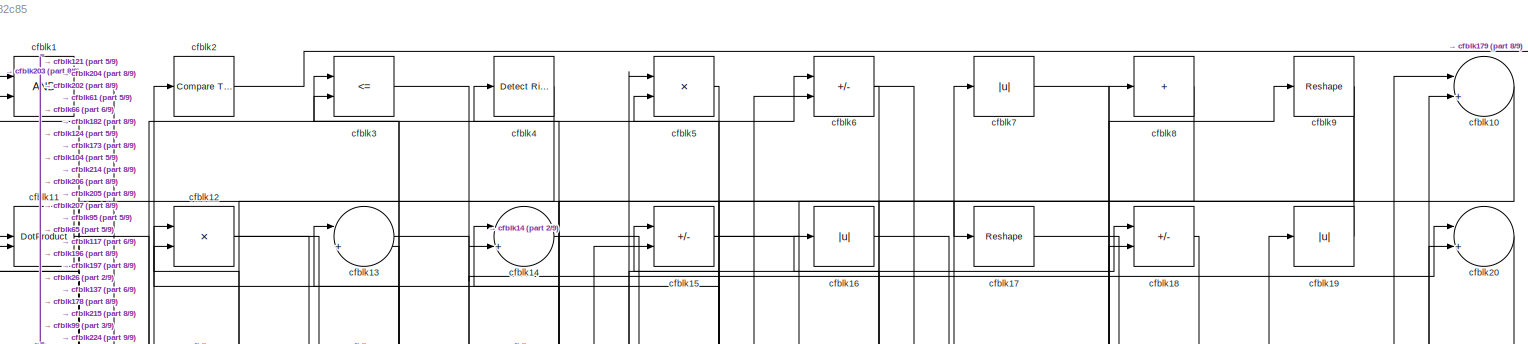
[diagram: root canvas - part 1/9, full width, top band]
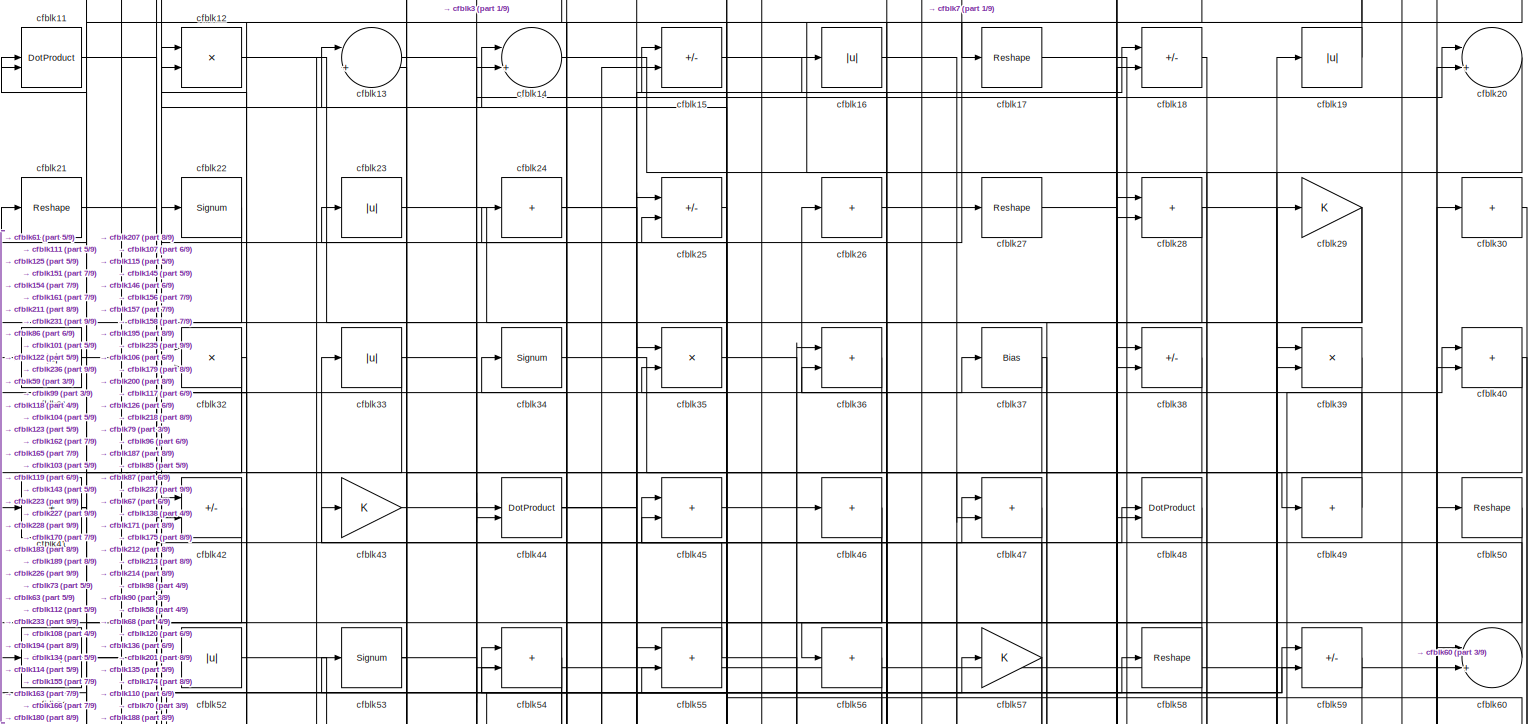
[diagram: root canvas - part 2/9, full width, top band]
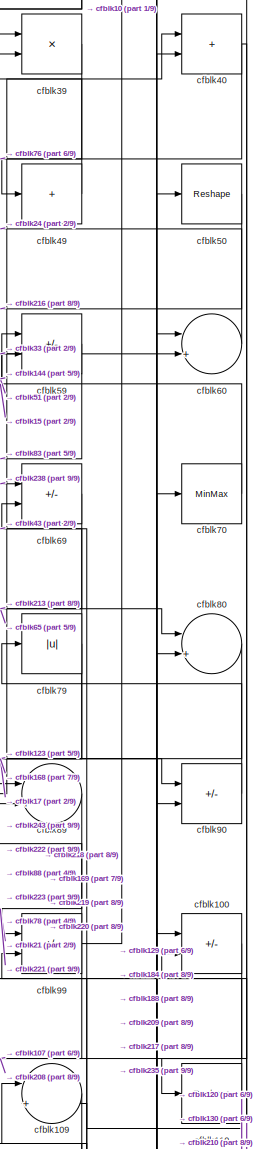
[diagram: root canvas - part 3/9, top right region]
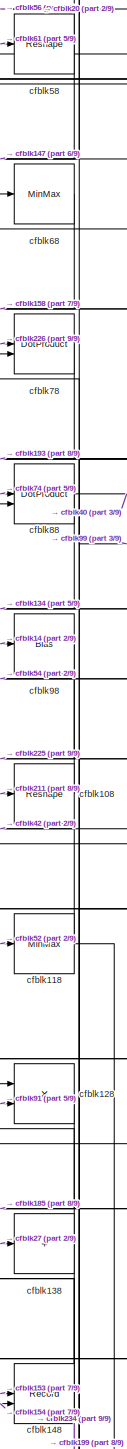
[diagram: root canvas - part 4/9, middle right region]
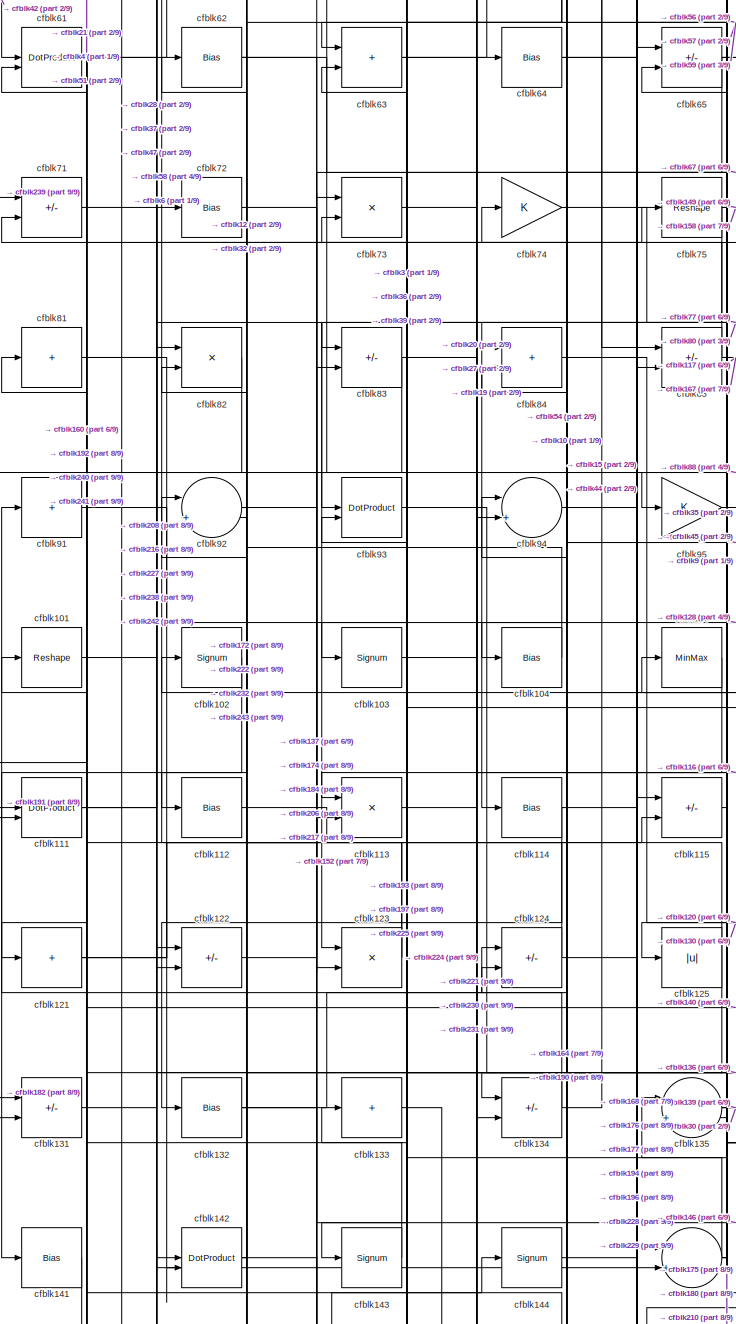
[diagram: root canvas - part 5/9, middle left region]
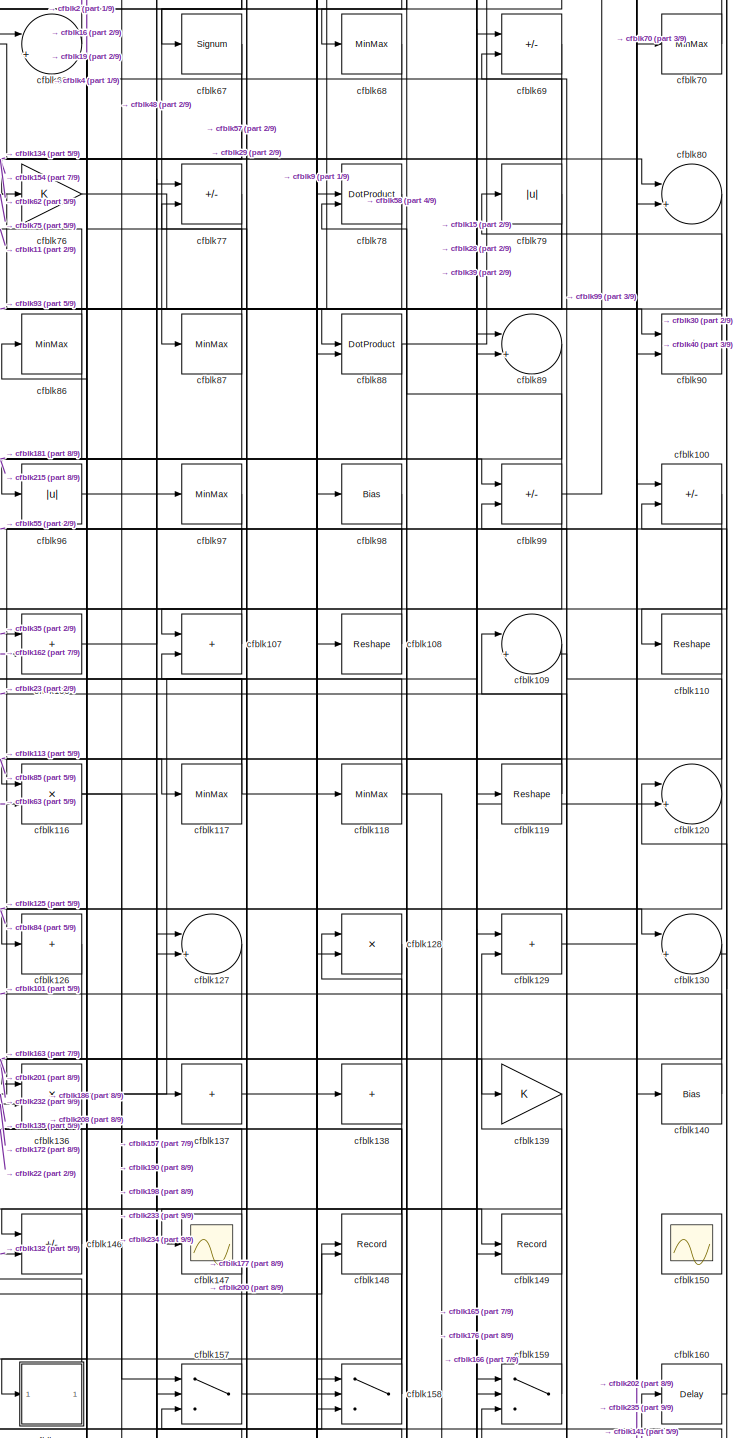
[diagram: root canvas - part 6/9, middle right region]
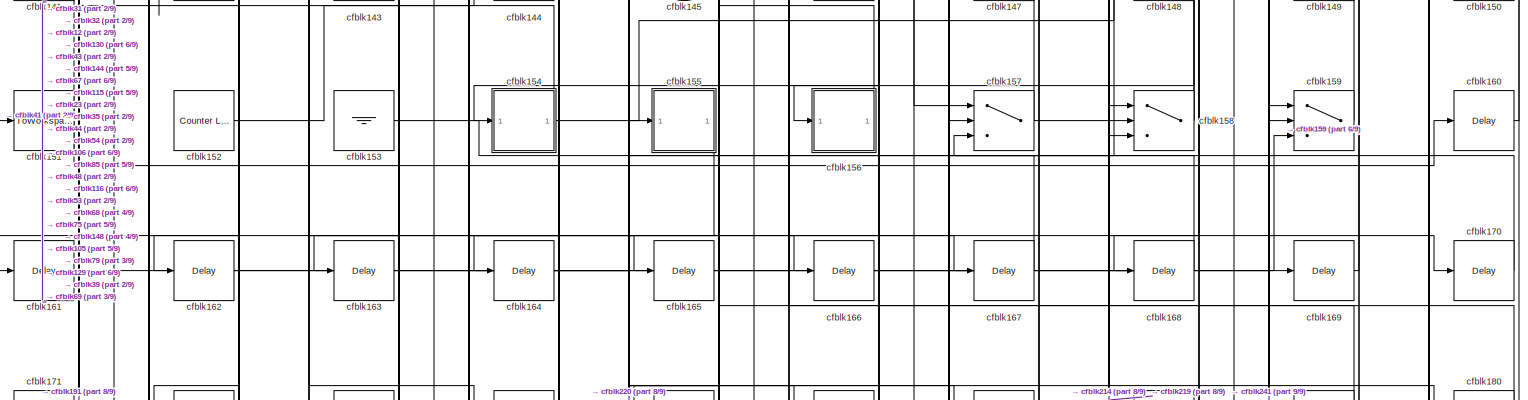
[diagram: root canvas - part 7/9, full width, middle band]
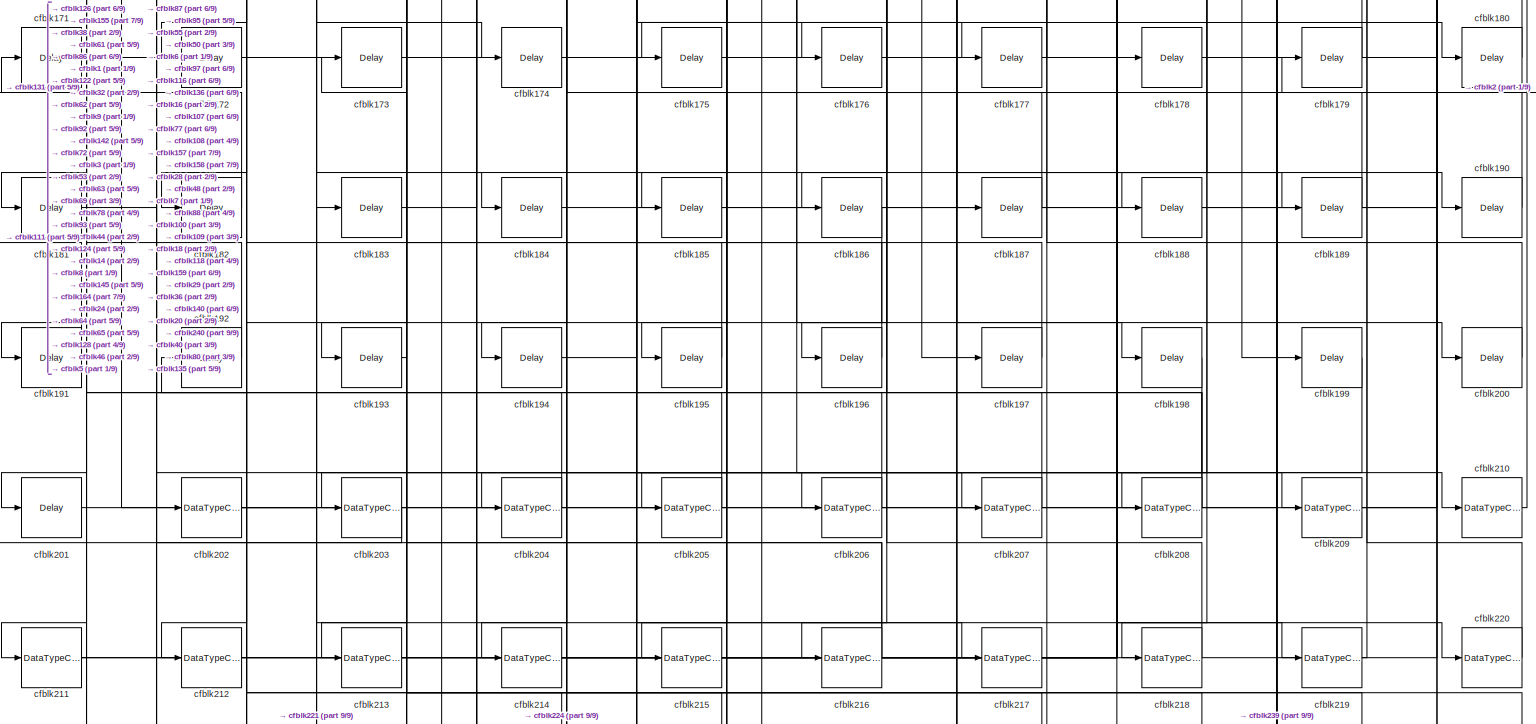
[diagram: root canvas - part 8/9, full width, bottom band]
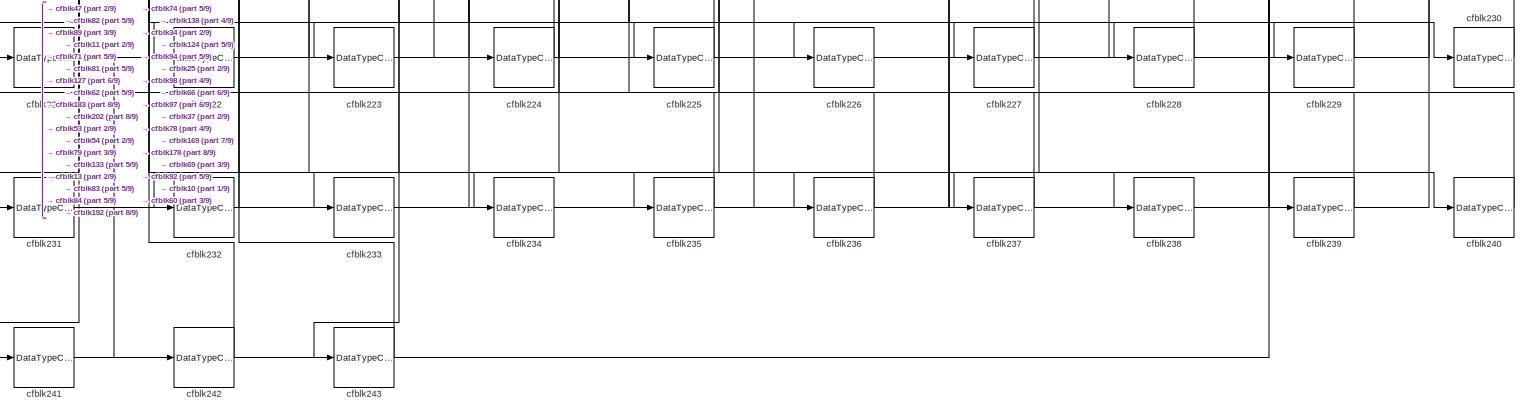
[diagram: root canvas - part 9/9, full width, bottom band]
MODEL slx_c35cb0b82c85
KIND model
CONFIG AbsTol = auto
CONFIG EnableMultiTasking = off
CONFIG FixedStep = auto
CONFIG MaxStep = auto
CONFIG MinStep = auto
CONFIG RelTol = 1e-3
CONFIG SampleTimeConstraint = Unconstrained
CONFIG SolverName = VariableStepAuto
CONFIG StartTime = 0.0
CONFIG StopTime = 10.0
BLOCK [Logic] cfblk1
  AllPortsSameDT = off
  OutDataTypeStr = boolean
BLOCK [Sum] cfblk10
  Inputs = |++
BLOCK [Sum] cfblk100
  IconShape = rectangular
  Inputs = +-
BLOCK [Reshape] cfblk101
BLOCK [Signum] cfblk102
BLOCK [Signum] cfblk103
BLOCK [Bias] cfblk104
  Bias = 0.0
  SaturateOnIntegerOverflow = off
BLOCK [MinMax] cfblk105
BLOCK [Sum] cfblk106
  IconShape = rectangular
BLOCK [Sum] cfblk107
  IconShape = rectangular
BLOCK [Reshape] cfblk108
BLOCK [Sum] cfblk109
  Inputs = |++
BLOCK [DotProduct] cfblk11
  OutDataTypeStr = Inherit: Inherit via internal rule
BLOCK [Reshape] cfblk110
BLOCK [DotProduct] cfblk111
  OutDataTypeStr = Inherit: Inherit via internal rule
BLOCK [Bias] cfblk112
  Bias = 0.0
  SaturateOnIntegerOverflow = off
BLOCK [Product] cfblk113
  Inputs = */
  RndMeth = Zero
  SaturateOnIntegerOverflow = on
BLOCK [Bias] cfblk114
  Bias = 0.0
  SaturateOnIntegerOverflow = off
BLOCK [Sum] cfblk115
  IconShape = rectangular
  Inputs = +-
BLOCK [Product] cfblk116
  Inputs = */
  RndMeth = Zero
  SaturateOnIntegerOverflow = on
BLOCK [MinMax] cfblk117
BLOCK [MinMax] cfblk118
BLOCK [Reshape] cfblk119
BLOCK [Product] cfblk12
  Inputs = */
  RndMeth = Zero
  SaturateOnIntegerOverflow = on
BLOCK [Sum] cfblk120
  Inputs = |++
BLOCK [Sum] cfblk121
  IconShape = rectangular
  Inputs = +
BLOCK [Sum] cfblk122
  IconShape = rectangular
  Inputs = +-
BLOCK [Product] cfblk123
  Inputs = */
  RndMeth = Zero
  SaturateOnIntegerOverflow = on
BLOCK [Sum] cfblk124
  IconShape = rectangular
  Inputs = +-
BLOCK [Abs] cfblk125
  SaturateOnIntegerOverflow = off
BLOCK [Sum] cfblk126
  IconShape = rectangular
  Inputs = +
BLOCK [Sum] cfblk127
  Inputs = |++
BLOCK [Product] cfblk128
  Inputs = */
  RndMeth = Zero
  SaturateOnIntegerOverflow = on
BLOCK [Sum] cfblk129
  IconShape = rectangular
BLOCK [Sum] cfblk13
  Inputs = |++
BLOCK [Sum] cfblk130
  Inputs = |++
BLOCK [Sum] cfblk131
  IconShape = rectangular
  Inputs = +-
BLOCK [Bias] cfblk132
  Bias = 0.0
  SaturateOnIntegerOverflow = off
BLOCK [Sum] cfblk133
  IconShape = rectangular
  Inputs = +
BLOCK [Sum] cfblk134
  IconShape = rectangular
  Inputs = +-
BLOCK [Sum] cfblk135
  Inputs = |++
BLOCK [Product] cfblk136
  Inputs = */
  RndMeth = Zero
  SaturateOnIntegerOverflow = on
BLOCK [Sum] cfblk137
  IconShape = rectangular
  Inputs = +
BLOCK [Sum] cfblk138
  IconShape = rectangular
  Inputs = +
BLOCK [Gain] cfblk139
BLOCK [Sum] cfblk14
  Inputs = |++
BLOCK [Bias] cfblk140
  Bias = 0.0
  SaturateOnIntegerOverflow = off
BLOCK [Bias] cfblk141
  Bias = 0.0
  SaturateOnIntegerOverflow = off
BLOCK [DotProduct] cfblk142
  OutDataTypeStr = Inherit: Inherit via internal rule
BLOCK [Signum] cfblk143
BLOCK [Signum] cfblk144
BLOCK [Sum] cfblk145
  Inputs = |++
BLOCK [Sum] cfblk146
  IconShape = rectangular
  Inputs = +-
BLOCK [Scope] cfblk147
  Floating = off
  NumInputPorts = 1
  ScopeSpecificationString = Simulink.scopes.TimeScopeBlockCfg('CurrentConfiguration', extmgr.ConfigurationSet(extmgr.Configuration('Core','General UI',true),extmgr.Configuration('Core','Source UI',true),extmgr.Configuration('Sources','WiredSimulink',true,'DataLoggingVariableName','ScopeData2','DataLoggingSaveFormat','Array','DataLoggingLimitDataPoints',true,'DataLoggingDecimation','1'),extmgr.Configuration('Visuals','Time Do...<+868ch>
BLOCK [Record] cfblk148
  CompatibilityTag = XY
  FileSettingsInternal = {"entries":[{"content":{"excelSettings":{"content":{},"type":"Streamout.ExcelSettings"}},"type":"Streamout.FileSettingStorage","uuid":""}],"packageUris":["http:\/\/schema.mathworks.com\/mf0\/streamout_blocks\/R2020a"],"version":"1.0"}
  Layout = [1 1]
  SignalsInternal = {"entries":[{"content":{"signals":[{"content":{"blockPath":[],"dimensions":[1],"domain":"","lineColor":"#a2142f","plots":[1],"port":1,"signalID":5311,"signalName":"XY Graph:1"},"type":"RecordBlkView.Signal","uuid":""},{"content":{"blockPath":[],"dimensions":[1],"domain":"","lineColor":"#139fff","plots":[1],"port":2,"signalID":5314,"signalName":"XY Graph:2"},"type":"RecordBlkView.Signal","uuid":""}...<+146ch>
  VisualizationBindings = {"xyplotplugin":{"info":[{"series":[{"bindingParametersList":[{"parameter":"X-Axis","signalID":5311,"signalName":"XY Graph:1"},{"parameter":"Y-Axis","signalID":5314,"signalName":"XY Graph:2"}],"seriesID":33209}],"subplotID":1}]}}
  st = -1
BLOCK [Record] cfblk149
  CompatibilityTag = XY
  FileSettingsInternal = {"entries":[{"content":{"excelSettings":{"content":{},"type":"Streamout.ExcelSettings"}},"type":"Streamout.FileSettingStorage","uuid":""}],"packageUris":["http:\/\/schema.mathworks.com\/mf0\/streamout_blocks\/R2020a"],"version":"1.0"}
  Layout = [1 1]
  SignalsInternal = {"entries":[{"content":{"signals":[{"content":{"blockPath":[],"dimensions":[1],"domain":"","lineColor":"#a2142f","plots":[1],"port":1,"signalID":5319,"signalName":"XY Graph:1"},"type":"RecordBlkView.Signal","uuid":""},{"content":{"blockPath":[],"dimensions":[1],"domain":"","lineColor":"#139fff","plots":[1],"port":2,"signalID":5322,"signalName":"XY Graph:2"},"type":"RecordBlkView.Signal","uuid":""}...<+146ch>
  VisualizationBindings = {"xyplotplugin":{"info":[{"series":[{"bindingParametersList":[{"parameter":"X-Axis","signalID":5319,"signalName":"XY Graph:1"},{"parameter":"Y-Axis","signalID":5322,"signalName":"XY Graph:2"}],"seriesID":898}],"subplotID":1}]}}
  st = -1
BLOCK [Sum] cfblk15
  IconShape = rectangular
  Inputs = +-
BLOCK [Scope] cfblk150
  Floating = on
  NumInputPorts = 1
  ScopeSpecificationString = Simulink.scopes.TimeScopeBlockCfg('CurrentConfiguration', extmgr.ConfigurationSet(extmgr.Configuration('Core','General UI',true,'FigureColor',[0.156862745098039 0.156862745098039 0.156862745098039]),extmgr.Configuration('Core','Source UI',true),extmgr.Configuration('Sources','WiredSimulink',true,'DataLoggingVariableName','ScopeData1','DataLoggingSaveFormat','StructureWithTime','DataLoggingLimitDat...<+2713ch>
BLOCK [ToWorkspace] cfblk151
  MaxDataPoints = inf
  SampleTime = -1
  SaveFormat = Timeseries
  VariableName = simout
BLOCK [Reference] cfblk152  REF=hdlsllib/Sources/Counter
Limited
  SourceBlock = hdlsllib/Sources/Counter\nLimited
  SourceType = Counter Limited
BLOCK [Ground] cfblk153
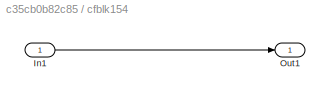
BLOCK [SubSystem] cfblk154
  LibrarySourceBlock = hdlsllib/Ports &\nSubsystems/Subsystem
BLOCK [Inport] cfblk154/In1
BLOCK [Outport] cfblk154/Out1
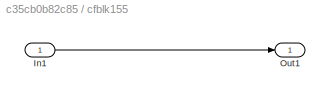
BLOCK [SubSystem] cfblk155
  LibrarySourceBlock = hdlsllib/Ports &\nSubsystems/Subsystem
BLOCK [Inport] cfblk155/In1
BLOCK [Outport] cfblk155/Out1
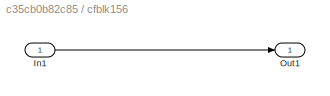
BLOCK [SubSystem] cfblk156
  LibrarySourceBlock = hdlsllib/Ports &\nSubsystems/Subsystem
BLOCK [Inport] cfblk156/In1
BLOCK [Outport] cfblk156/Out1
BLOCK [Switch] cfblk157
  InputSameDT = off
  SaturateOnIntegerOverflow = off
BLOCK [Switch] cfblk158
  InputSameDT = off
  SaturateOnIntegerOverflow = off
BLOCK [Switch] cfblk159
  InputSameDT = off
  SaturateOnIntegerOverflow = off
BLOCK [Abs] cfblk16
  SaturateOnIntegerOverflow = off
BLOCK [Delay] cfblk160
  InputPortMap = u0
  SampleTime = 1
BLOCK [Delay] cfblk161
  InputPortMap = u0
  SampleTime = 1
BLOCK [Delay] cfblk162
  InputPortMap = u0
  SampleTime = 1
BLOCK [Delay] cfblk163
  InputPortMap = u0
  SampleTime = 1
BLOCK [Delay] cfblk164
  InputPortMap = u0
  SampleTime = 1
BLOCK [Delay] cfblk165
  InputPortMap = u0
  SampleTime = 1
BLOCK [Delay] cfblk166
  InputPortMap = u0
  SampleTime = 1
BLOCK [Delay] cfblk167
  InputPortMap = u0
  SampleTime = 1
BLOCK [Delay] cfblk168
  InputPortMap = u0
  SampleTime = 1
BLOCK [Delay] cfblk169
  InputPortMap = u0
  SampleTime = 1
BLOCK [Reshape] cfblk17
BLOCK [Delay] cfblk170
  InputPortMap = u0
  SampleTime = 1
BLOCK [Delay] cfblk171
  InputPortMap = u0
  SampleTime = 1
BLOCK [Delay] cfblk172
  InputPortMap = u0
  SampleTime = 1
BLOCK [Delay] cfblk173
  InputPortMap = u0
  SampleTime = 1
BLOCK [Delay] cfblk174
  InputPortMap = u0
  SampleTime = 1
BLOCK [Delay] cfblk175
  InputPortMap = u0
  SampleTime = 1
BLOCK [Delay] cfblk176
  InputPortMap = u0
  SampleTime = 1
BLOCK [Delay] cfblk177
  InputPortMap = u0
  SampleTime = 1
BLOCK [Delay] cfblk178
  InputPortMap = u0
  SampleTime = 1
BLOCK [Delay] cfblk179
  InputPortMap = u0
  SampleTime = 1
BLOCK [Sum] cfblk18
  IconShape = rectangular
  Inputs = +-
BLOCK [Delay] cfblk180
  InputPortMap = u0
  SampleTime = 1
BLOCK [Delay] cfblk181
  InputPortMap = u0
  SampleTime = 1
BLOCK [Delay] cfblk182
  InputPortMap = u0
  SampleTime = 1
BLOCK [Delay] cfblk183
  InputPortMap = u0
  SampleTime = 1
BLOCK [Delay] cfblk184
  InputPortMap = u0
  SampleTime = 1
BLOCK [Delay] cfblk185
  InputPortMap = u0
  SampleTime = 1
BLOCK [Delay] cfblk186
  InputPortMap = u0
  SampleTime = 1
BLOCK [Delay] cfblk187
  InputPortMap = u0
  SampleTime = 1
BLOCK [Delay] cfblk188
  InputPortMap = u0
  SampleTime = 1
BLOCK [Delay] cfblk189
  InputPortMap = u0
  SampleTime = 1
BLOCK [Abs] cfblk19
  SaturateOnIntegerOverflow = off
BLOCK [Delay] cfblk190
  InputPortMap = u0
  SampleTime = 1
BLOCK [Delay] cfblk191
  InputPortMap = u0
  SampleTime = 1
BLOCK [Delay] cfblk192
  InputPortMap = u0
  SampleTime = 1
BLOCK [Delay] cfblk193
  InputPortMap = u0
  SampleTime = 1
BLOCK [Delay] cfblk194
  InputPortMap = u0
  SampleTime = 1
BLOCK [Delay] cfblk195
  InputPortMap = u0
  SampleTime = 1
BLOCK [Delay] cfblk196
  InputPortMap = u0
  SampleTime = 1
BLOCK [Delay] cfblk197
  InputPortMap = u0
  SampleTime = 1
BLOCK [Delay] cfblk198
  InputPortMap = u0
  SampleTime = 1
BLOCK [Delay] cfblk199
  InputPortMap = u0
  SampleTime = 1
BLOCK [Reference] cfblk2  REF=hdlsllib/Logic and Bit
Operations/Compare
To Zero
  SourceBlock = hdlsllib/Logic and Bit\nOperations/Compare\nTo Zero
  SourceType = Compare To Zero
BLOCK [Sum] cfblk20
  Inputs = |++
BLOCK [Delay] cfblk200
  InputPortMap = u0
  SampleTime = 1
BLOCK [Delay] cfblk201
  InputPortMap = u0
  SampleTime = 1
BLOCK [DataTypeConversion] cfblk202
  RndMeth = Floor
  SaturateOnIntegerOverflow = off
BLOCK [DataTypeConversion] cfblk203
  OutDataTypeStr = uint8
  RndMeth = Floor
  SaturateOnIntegerOverflow = off
BLOCK [DataTypeConversion] cfblk204
  OutDataTypeStr = uint8
  RndMeth = Floor
  SaturateOnIntegerOverflow = off
BLOCK [DataTypeConversion] cfblk205
  OutDataTypeStr = uint8
  RndMeth = Floor
  SaturateOnIntegerOverflow = off
BLOCK [DataTypeConversion] cfblk206
  OutDataTypeStr = uint8
  RndMeth = Floor
  SaturateOnIntegerOverflow = off
BLOCK [DataTypeConversion] cfblk207
  OutDataTypeStr = uint8
  RndMeth = Floor
  SaturateOnIntegerOverflow = off
BLOCK [DataTypeConversion] cfblk208
  RndMeth = Floor
  SaturateOnIntegerOverflow = off
BLOCK [DataTypeConversion] cfblk209
  OutDataTypeStr = uint8
  RndMeth = Floor
  SaturateOnIntegerOverflow = off
BLOCK [Reshape] cfblk21
BLOCK [DataTypeConversion] cfblk210
  OutDataTypeStr = uint8
  RndMeth = Floor
  SaturateOnIntegerOverflow = off
BLOCK [DataTypeConversion] cfblk211
  RndMeth = Floor
  SaturateOnIntegerOverflow = off
BLOCK [DataTypeConversion] cfblk212
  OutDataTypeStr = uint8
  RndMeth = Floor
  SaturateOnIntegerOverflow = off
BLOCK [DataTypeConversion] cfblk213
  OutDataTypeStr = uint8
  RndMeth = Floor
  SaturateOnIntegerOverflow = off
BLOCK [DataTypeConversion] cfblk214
  RndMeth = Floor
  SaturateOnIntegerOverflow = off
BLOCK [DataTypeConversion] cfblk215
  OutDataTypeStr = uint8
  RndMeth = Floor
  SaturateOnIntegerOverflow = off
BLOCK [DataTypeConversion] cfblk216
  RndMeth = Floor
  SaturateOnIntegerOverflow = off
BLOCK [DataTypeConversion] cfblk217
  OutDataTypeStr = uint8
  RndMeth = Floor
  SaturateOnIntegerOverflow = off
BLOCK [DataTypeConversion] cfblk218
  OutDataTypeStr = uint8
  RndMeth = Floor
  SaturateOnIntegerOverflow = off
BLOCK [DataTypeConversion] cfblk219
  OutDataTypeStr = uint8
  RndMeth = Floor
  SaturateOnIntegerOverflow = off
BLOCK [Signum] cfblk22
BLOCK [DataTypeConversion] cfblk220
  OutDataTypeStr = uint8
  RndMeth = Floor
  SaturateOnIntegerOverflow = off
BLOCK [DataTypeConversion] cfblk221
  RndMeth = Floor
  SaturateOnIntegerOverflow = off
BLOCK [DataTypeConversion] cfblk222
  OutDataTypeStr = uint8
  RndMeth = Floor
  SaturateOnIntegerOverflow = off
BLOCK [DataTypeConversion] cfblk223
  OutDataTypeStr = uint8
  RndMeth = Floor
  SaturateOnIntegerOverflow = off
BLOCK [DataTypeConversion] cfblk224
  RndMeth = Floor
  SaturateOnIntegerOverflow = off
BLOCK [DataTypeConversion] cfblk225
  OutDataTypeStr = uint8
  RndMeth = Floor
  SaturateOnIntegerOverflow = off
BLOCK [DataTypeConversion] cfblk226
  OutDataTypeStr = uint8
  RndMeth = Floor
  SaturateOnIntegerOverflow = off
BLOCK [DataTypeConversion] cfblk227
  OutDataTypeStr = uint8
  RndMeth = Floor
  SaturateOnIntegerOverflow = off
BLOCK [DataTypeConversion] cfblk228
  OutDataTypeStr = uint8
  RndMeth = Floor
  SaturateOnIntegerOverflow = off
BLOCK [DataTypeConversion] cfblk229
  OutDataTypeStr = uint8
  RndMeth = Floor
  SaturateOnIntegerOverflow = off
BLOCK [Abs] cfblk23
  SaturateOnIntegerOverflow = off
BLOCK [DataTypeConversion] cfblk230
  OutDataTypeStr = uint8
  RndMeth = Floor
  SaturateOnIntegerOverflow = off
BLOCK [DataTypeConversion] cfblk231
  OutDataTypeStr = uint8
  RndMeth = Floor
  SaturateOnIntegerOverflow = off
BLOCK [DataTypeConversion] cfblk232
  RndMeth = Floor
  SaturateOnIntegerOverflow = off
BLOCK [DataTypeConversion] cfblk233
  OutDataTypeStr = uint8
  RndMeth = Floor
  SaturateOnIntegerOverflow = off
BLOCK [DataTypeConversion] cfblk234
  OutDataTypeStr = uint8
  RndMeth = Floor
  SaturateOnIntegerOverflow = off
BLOCK [DataTypeConversion] cfblk235
  RndMeth = Floor
  SaturateOnIntegerOverflow = off
BLOCK [DataTypeConversion] cfblk236
  OutDataTypeStr = uint8
  RndMeth = Floor
  SaturateOnIntegerOverflow = off
BLOCK [DataTypeConversion] cfblk237
  OutDataTypeStr = uint8
  RndMeth = Floor
  SaturateOnIntegerOverflow = off
BLOCK [DataTypeConversion] cfblk238
  OutDataTypeStr = uint8
  RndMeth = Floor
  SaturateOnIntegerOverflow = off
BLOCK [DataTypeConversion] cfblk239
  OutDataTypeStr = uint8
  RndMeth = Floor
  SaturateOnIntegerOverflow = off
BLOCK [Sum] cfblk24
  IconShape = rectangular
  Inputs = +
BLOCK [DataTypeConversion] cfblk240
  OutDataTypeStr = uint8
  RndMeth = Floor
  SaturateOnIntegerOverflow = off
BLOCK [DataTypeConversion] cfblk241
  OutDataTypeStr = uint8
  RndMeth = Floor
  SaturateOnIntegerOverflow = off
BLOCK [DataTypeConversion] cfblk242
  OutDataTypeStr = uint8
  RndMeth = Floor
  SaturateOnIntegerOverflow = off
BLOCK [DataTypeConversion] cfblk243
  OutDataTypeStr = uint8
  RndMeth = Floor
  SaturateOnIntegerOverflow = off
BLOCK [Sum] cfblk25
  IconShape = rectangular
  Inputs = +-
BLOCK [Sum] cfblk26
  IconShape = rectangular
  Inputs = +
BLOCK [Reshape] cfblk27
BLOCK [Sum] cfblk28
  IconShape = rectangular
BLOCK [Gain] cfblk29
BLOCK [RelationalOperator] cfblk3
  InputSameDT = off
  Operator = <=
  OutDataTypeStr = boolean
BLOCK [Sum] cfblk30
  IconShape = rectangular
  Inputs = +
BLOCK [Abs] cfblk31
  SaturateOnIntegerOverflow = off
BLOCK [Product] cfblk32
  Inputs = */
  RndMeth = Zero
  SaturateOnIntegerOverflow = on
BLOCK [Abs] cfblk33
  SaturateOnIntegerOverflow = off
BLOCK [Signum] cfblk34
BLOCK [Product] cfblk35
  Inputs = */
  RndMeth = Zero
  SaturateOnIntegerOverflow = on
BLOCK [Sum] cfblk36
  IconShape = rectangular
BLOCK [Bias] cfblk37
  Bias = 0.0
  SaturateOnIntegerOverflow = off
BLOCK [Sum] cfblk38
  IconShape = rectangular
  Inputs = +-
BLOCK [Product] cfblk39
  Inputs = */
  RndMeth = Zero
  SaturateOnIntegerOverflow = on
BLOCK [Reference] cfblk4  REF=hdlsllib/Logic and Bit
Operations/Detect Rise
Nonnegative
  SourceBlock = hdlsllib/Logic and Bit\nOperations/Detect Rise\nNonnegative
  SourceType = Detect Rise Nonnegative
BLOCK [Sum] cfblk40
  IconShape = rectangular
BLOCK [Sum] cfblk41
  IconShape = rectangular
  Inputs = +
BLOCK [Sum] cfblk42
  IconShape = rectangular
  Inputs = +-
BLOCK [Gain] cfblk43
BLOCK [DotProduct] cfblk44
  OutDataTypeStr = Inherit: Inherit via internal rule
BLOCK [Sum] cfblk45
  IconShape = rectangular
BLOCK [Sum] cfblk46
  IconShape = rectangular
  Inputs = +
BLOCK [Sum] cfblk47
  IconShape = rectangular
BLOCK [DotProduct] cfblk48
  OutDataTypeStr = Inherit: Inherit via internal rule
BLOCK [Sum] cfblk49
  IconShape = rectangular
  Inputs = +
BLOCK [Product] cfblk5
  Inputs = */
  RndMeth = Zero
  SaturateOnIntegerOverflow = on
BLOCK [Reshape] cfblk50
BLOCK [Reshape] cfblk51
BLOCK [Abs] cfblk52
  SaturateOnIntegerOverflow = off
BLOCK [Signum] cfblk53
BLOCK [Sum] cfblk54
  IconShape = rectangular
BLOCK [Sum] cfblk55
  IconShape = rectangular
BLOCK [Sum] cfblk56
  IconShape = rectangular
  Inputs = +
BLOCK [Gain] cfblk57
BLOCK [Reshape] cfblk58
BLOCK [Sum] cfblk59
  IconShape = rectangular
  Inputs = +-
BLOCK [Sum] cfblk6
  IconShape = rectangular
  Inputs = +-
BLOCK [Sum] cfblk60
  Inputs = |++
BLOCK [DotProduct] cfblk61
  OutDataTypeStr = Inherit: Inherit via internal rule
BLOCK [Bias] cfblk62
  Bias = 0.0
  SaturateOnIntegerOverflow = off
BLOCK [Sum] cfblk63
  IconShape = rectangular
BLOCK [Bias] cfblk64
  Bias = 0.0
  SaturateOnIntegerOverflow = off
BLOCK [Sum] cfblk65
  IconShape = rectangular
  Inputs = +-
BLOCK [Sum] cfblk66
  Inputs = |++
BLOCK [Signum] cfblk67
BLOCK [MinMax] cfblk68
BLOCK [Sum] cfblk69
  IconShape = rectangular
  Inputs = +-
BLOCK [Abs] cfblk7
  SaturateOnIntegerOverflow = off
BLOCK [MinMax] cfblk70
BLOCK [Sum] cfblk71
  IconShape = rectangular
  Inputs = +-
BLOCK [Bias] cfblk72
  Bias = 0.0
  SaturateOnIntegerOverflow = off
BLOCK [Product] cfblk73
  Inputs = */
  RndMeth = Zero
  SaturateOnIntegerOverflow = on
BLOCK [Gain] cfblk74
BLOCK [Reshape] cfblk75
BLOCK [Gain] cfblk76
BLOCK [Sum] cfblk77
  IconShape = rectangular
  Inputs = +-
BLOCK [DotProduct] cfblk78
  OutDataTypeStr = Inherit: Inherit via internal rule
BLOCK [Abs] cfblk79
  SaturateOnIntegerOverflow = off
BLOCK [Sum] cfblk8
  IconShape = rectangular
  Inputs = +
BLOCK [Sum] cfblk80
  Inputs = |++
BLOCK [Sum] cfblk81
  IconShape = rectangular
  Inputs = +
BLOCK [Product] cfblk82
  Inputs = */
  RndMeth = Zero
  SaturateOnIntegerOverflow = on
BLOCK [Sum] cfblk83
  IconShape = rectangular
  Inputs = +-
BLOCK [Sum] cfblk84
  IconShape = rectangular
BLOCK [Sum] cfblk85
  IconShape = rectangular
  Inputs = +-
BLOCK [MinMax] cfblk86
BLOCK [MinMax] cfblk87
BLOCK [DotProduct] cfblk88
  OutDataTypeStr = Inherit: Inherit via internal rule
BLOCK [Sum] cfblk89
  Inputs = |++
BLOCK [Reshape] cfblk9
BLOCK [Sum] cfblk90
  IconShape = rectangular
  Inputs = +-
BLOCK [Sum] cfblk91
  IconShape = rectangular
  Inputs = +
BLOCK [Sum] cfblk92
  Inputs = |++
BLOCK [DotProduct] cfblk93
  OutDataTypeStr = Inherit: Inherit via internal rule
BLOCK [Sum] cfblk94
  Inputs = |++
BLOCK [Gain] cfblk95
BLOCK [Abs] cfblk96
  SaturateOnIntegerOverflow = off
BLOCK [MinMax] cfblk97
BLOCK [Bias] cfblk98
  Bias = 0.0
  SaturateOnIntegerOverflow = off
BLOCK [Sum] cfblk99
  IconShape = rectangular
  Inputs = +-
LINE cfblk100:1 -> cfblk208:1
LINE cfblk101:1 -> cfblk37:1
LINE cfblk102:1 -> cfblk141:1
LINE cfblk103:1 -> cfblk20:1
LINE cfblk104:1 -> cfblk12:1
LINE cfblk105:1 -> cfblk164:1
LINE cfblk106:1 -> cfblk77:1
LINE cfblk107:1 -> cfblk55:2
LINE cfblk108:1 -> cfblk54:2
LINE cfblk109:1 -> cfblk218:1
LINE cfblk10:1 -> cfblk104:1
NET cfblk110:1 -> cfblk113:1, cfblk84:2
NET cfblk111:1 -> cfblk47:1, cfblk75:1
LINE cfblk112:1 -> cfblk115:2
LINE cfblk113:1 -> cfblk64:1
NET cfblk114:1 -> cfblk132:1, cfblk57:1
LINE cfblk115:1 -> cfblk35:2
NET cfblk116:1 -> cfblk157:1, cfblk190:1
NET cfblk117:1 -> cfblk149:1, cfblk16:1, cfblk4:1
NET cfblk118:1 -> cfblk199:1, cfblk42:1
NET cfblk119:1 -> cfblk116:1, cfblk23:1
LINE cfblk11:1 -> cfblk236:1
NET cfblk120:1 -> cfblk125:1, cfblk99:2
NET cfblk121:1 -> cfblk73:1, cfblk83:2
LINE cfblk122:1 -> cfblk113:2
NET cfblk123:1 -> cfblk102:1, cfblk32:1
NET cfblk124:1 -> cfblk228:1, cfblk3:1
NET cfblk125:1 -> cfblk142:2, cfblk21:1
LINE cfblk126:1 -> cfblk201:1
LINE cfblk127:1 -> cfblk232:1
LINE cfblk128:1 -> cfblk185:1
LINE cfblk129:1 -> cfblk70:1
NET cfblk12:1 -> cfblk165:1, cfblk44:2
LINE cfblk130:1 -> cfblk163:1
LINE cfblk131:1 -> cfblk72:1
NET cfblk132:1 -> cfblk124:1, cfblk146:2
LINE cfblk133:1 -> cfblk224:1
NET cfblk134:1 -> cfblk15:2, cfblk91:1
NET cfblk135:1 -> cfblk139:1, cfblk30:1
NET cfblk136:1 -> cfblk198:1, cfblk39:1
LINE cfblk137:1 -> cfblk9:1
NET cfblk138:1 -> cfblk128:1, cfblk234:1
LINE cfblk139:1 -> cfblk146:1
LINE cfblk13:1 -> cfblk226:1
LINE cfblk140:1 -> cfblk101:1
LINE cfblk141:1 -> cfblk160:1
NET cfblk142:1 -> cfblk174:1, cfblk62:1
LINE cfblk143:1 -> cfblk81:1
LINE cfblk144:1 -> cfblk59:1
NET cfblk145:1 -> cfblk45:1, cfblk65:2, cfblk73:2
LINE cfblk146:1 -> cfblk22:1
LINE cfblk14:1 -> cfblk98:1
LINE cfblk152:1 -> cfblk144:1
LINE cfblk153:1 -> cfblk148:1
LINE cfblk154/In1:1 -> cfblk154/Out1:1
NET cfblk154:1 -> cfblk148:2, cfblk31:1
LINE cfblk155/In1:1 -> cfblk155/Out1:1
LINE cfblk155:1 -> cfblk191:1
LINE cfblk156/In1:1 -> cfblk156/Out1:1
LINE cfblk156:1 -> cfblk54:1
NET cfblk157:1 -> cfblk219:1, cfblk53:1
NET cfblk158:1 -> cfblk105:1, cfblk12:2
LINE cfblk159:1 -> cfblk129:2
NET cfblk15:1 -> cfblk119:1, cfblk17:1
LINE cfblk160:1 -> cfblk120:1
LINE cfblk161:1 -> cfblk39:2
LINE cfblk162:1 -> cfblk106:2
LINE cfblk163:1 -> cfblk35:1
LINE cfblk164:1 -> cfblk220:1
LINE cfblk165:1 -> cfblk129:1
LINE cfblk166:1 -> cfblk159:3
LINE cfblk167:1 -> cfblk157:3
LINE cfblk168:1 -> cfblk115:1
LINE cfblk169:1 -> cfblk69:2
LINE cfblk16:1 -> cfblk187:1
LINE cfblk170:1 -> cfblk157:2
LINE cfblk171:1 -> cfblk28:2
LINE cfblk172:1 -> cfblk136:2
LINE cfblk173:1 -> cfblk3:2
LINE cfblk174:1 -> cfblk20:2
LINE cfblk175:1 -> cfblk48:2
LINE cfblk176:1 -> cfblk159:2
LINE cfblk177:1 -> cfblk77:2
LINE cfblk178:1 -> cfblk239:1
LINE cfblk179:1 -> cfblk36:1
LINE cfblk17:1 -> cfblk90:1
LINE cfblk180:1 -> cfblk135:1
LINE cfblk181:1 -> cfblk209:1
LINE cfblk182:1 -> cfblk131:1
LINE cfblk183:1 -> cfblk44:1
LINE cfblk184:1 -> cfblk80:2
LINE cfblk185:1 -> cfblk88:2
LINE cfblk186:1 -> cfblk212:1
LINE cfblk187:1 -> cfblk55:1
LINE cfblk188:1 -> cfblk40:2
LINE cfblk189:1 -> cfblk14:1
LINE cfblk18:1 -> cfblk188:1
LINE cfblk190:1 -> cfblk124:2
LINE cfblk191:1 -> cfblk111:1
LINE cfblk192:1 -> cfblk61:2
LINE cfblk193:1 -> cfblk93:2
LINE cfblk194:1 -> cfblk145:1
LINE cfblk195:1 -> cfblk32:2
LINE cfblk196:1 -> cfblk65:1
LINE cfblk197:1 -> cfblk63:2
LINE cfblk198:1 -> cfblk203:1
LINE cfblk199:1 -> cfblk204:1
LINE cfblk19:1 -> cfblk96:1
LINE cfblk1:1 -> cfblk202:1
LINE cfblk200:1 -> cfblk107:2
LINE cfblk201:1 -> cfblk29:1
NET cfblk202:1 -> cfblk140:1, cfblk240:1
LINE cfblk203:1 -> cfblk1:1
LINE cfblk204:1 -> cfblk1:2
LINE cfblk205:1 -> cfblk171:1
LINE cfblk206:1 -> cfblk5:1
LINE cfblk207:1 -> cfblk5:2
NET cfblk208:1 -> cfblk122:1, cfblk86:1
LINE cfblk209:1 -> cfblk100:1
LINE cfblk20:1 -> cfblk68:1
LINE cfblk210:1 -> cfblk100:2
NET cfblk211:1 -> cfblk108:1, cfblk28:1
LINE cfblk212:1 -> cfblk38:1
LINE cfblk213:1 -> cfblk38:2
NET cfblk214:1 -> cfblk158:1, cfblk18:2
LINE cfblk215:1 -> cfblk8:1
NET cfblk216:1 -> cfblk142:1, cfblk173:1
LINE cfblk217:1 -> cfblk50:1
LINE cfblk218:1 -> cfblk36:2
LINE cfblk219:1 -> cfblk109:1
LINE cfblk21:1 -> cfblk99:1
LINE cfblk220:1 -> cfblk109:2
NET cfblk221:1 -> cfblk183:1, cfblk242:1, cfblk84:1
LINE cfblk222:1 -> cfblk89:1
LINE cfblk223:1 -> cfblk89:2
NET cfblk224:1 -> cfblk10:2, cfblk192:1, cfblk74:1
LINE cfblk225:1 -> cfblk133:1
LINE cfblk226:1 -> cfblk78:1
LINE cfblk227:1 -> cfblk13:1
LINE cfblk228:1 -> cfblk13:2
LINE cfblk229:1 -> cfblk92:1
LINE cfblk22:1 -> cfblk41:1
LINE cfblk230:1 -> cfblk94:1
LINE cfblk231:1 -> cfblk94:2
NET cfblk232:1 -> cfblk92:2, cfblk97:1
LINE cfblk233:1 -> cfblk127:1
LINE cfblk234:1 -> cfblk127:2
NET cfblk235:1 -> cfblk34:1, cfblk60:1, cfblk66:1
LINE cfblk236:1 -> cfblk25:1
LINE cfblk237:1 -> cfblk25:2
LINE cfblk238:1 -> cfblk69:1
LINE cfblk239:1 -> cfblk71:1
LINE cfblk23:1 -> cfblk155:1
LINE cfblk240:1 -> cfblk71:2
LINE cfblk241:1 -> cfblk169:1
LINE cfblk242:1 -> cfblk82:1
LINE cfblk243:1 -> cfblk82:2
NET cfblk24:1 -> cfblk180:1, cfblk207:1
LINE cfblk25:1 -> cfblk235:1
LINE cfblk26:1 -> cfblk7:1
LINE cfblk27:1 -> cfblk138:1
NET cfblk28:1 -> cfblk120:2, cfblk122:2
NET cfblk29:1 -> cfblk126:1, cfblk67:1
LINE cfblk2:1 -> cfblk179:1
LINE cfblk30:1 -> cfblk110:1
LINE cfblk31:1 -> cfblk42:2
NET cfblk32:1 -> cfblk111:2, cfblk161:1, cfblk162:1
NET cfblk33:1 -> cfblk52:1, cfblk60:2
LINE cfblk34:1 -> cfblk49:1
LINE cfblk35:1 -> cfblk106:1
LINE cfblk36:1 -> cfblk103:1
NET cfblk37:1 -> cfblk237:1, cfblk47:2
LINE cfblk38:1 -> cfblk211:1
LINE cfblk39:1 -> cfblk143:1
LINE cfblk3:1 -> cfblk14:2
NET cfblk40:1 -> cfblk130:2, cfblk76:1
NET cfblk41:1 -> cfblk11:1, cfblk151:1
LINE cfblk42:1 -> cfblk61:1
LINE cfblk43:1 -> cfblk170:1
NET cfblk44:1 -> cfblk166:1, cfblk18:1, cfblk85:1
LINE cfblk45:1 -> cfblk46:1
NET cfblk46:1 -> cfblk194:1, cfblk195:1
LINE cfblk47:1 -> cfblk231:1
LINE cfblk48:1 -> cfblk156:1
LINE cfblk49:1 -> cfblk26:1
LINE cfblk4:1 -> cfblk121:1
LINE cfblk50:1 -> cfblk216:1
NET cfblk51:1 -> cfblk59:2, cfblk90:2
LINE cfblk52:1 -> cfblk118:1
NET cfblk53:1 -> cfblk189:1, cfblk223:1
NET cfblk54:1 -> cfblk112:1, cfblk233:1
NET cfblk55:1 -> cfblk200:1, cfblk33:1
LINE cfblk56:1 -> cfblk63:1
NET cfblk57:1 -> cfblk45:2, cfblk85:2, cfblk87:1
NET cfblk58:1 -> cfblk147:1, cfblk56:1
LINE cfblk59:1 -> cfblk83:1
LINE cfblk5:1 -> cfblk205:1
LINE cfblk60:1 -> cfblk24:1
NET cfblk61:1 -> cfblk58:1, cfblk6:1
NET cfblk62:1 -> cfblk137:1, cfblk184:1, cfblk222:1
NET cfblk63:1 -> cfblk116:2, cfblk19:1
NET cfblk64:1 -> cfblk176:1, cfblk177:1
NET cfblk65:1 -> cfblk123:2, cfblk6:2, cfblk80:1
LINE cfblk66:1 -> cfblk2:1
NET cfblk67:1 -> cfblk134:1, cfblk154:1
LINE cfblk68:1 -> cfblk158:2
LINE cfblk69:1 -> cfblk213:1
NET cfblk6:1 -> cfblk196:1, cfblk197:1
LINE cfblk70:1 -> cfblk15:1
LINE cfblk71:1 -> cfblk238:1
LINE cfblk72:1 -> cfblk217:1
LINE cfblk73:1 -> cfblk27:1
LINE cfblk74:1 -> cfblk88:1
NET cfblk75:1 -> cfblk114:1, cfblk149:2, cfblk158:3
LINE cfblk76:1 -> cfblk159:1
LINE cfblk77:1 -> cfblk93:1
LINE cfblk78:1 -> cfblk193:1
NET cfblk79:1 -> cfblk168:1, cfblk243:1, cfblk43:1
LINE cfblk7:1 -> cfblk178:1
LINE cfblk80:1 -> cfblk123:1
NET cfblk81:1 -> cfblk145:2, cfblk227:1
LINE cfblk82:1 -> cfblk241:1
NET cfblk83:1 -> cfblk131:2, cfblk230:1
LINE cfblk84:1 -> cfblk130:1
NET cfblk85:1 -> cfblk117:1, cfblk167:1, cfblk51:1
NET cfblk86:1 -> cfblk11:2, cfblk181:1
NET cfblk87:1 -> cfblk215:1, cfblk66:2
NET cfblk88:1 -> cfblk134:2, cfblk40:1
LINE cfblk89:1 -> cfblk221:1
LINE cfblk8:1 -> cfblk214:1
LINE cfblk90:1 -> cfblk79:1
LINE cfblk91:1 -> cfblk128:2
NET cfblk92:1 -> cfblk172:1, cfblk206:1
LINE cfblk93:1 -> cfblk136:1
LINE cfblk94:1 -> cfblk229:1
NET cfblk95:1 -> cfblk135:2, cfblk175:1, cfblk210:1
LINE cfblk96:1 -> cfblk48:1
LINE cfblk97:1 -> cfblk186:1
LINE cfblk98:1 -> cfblk225:1
NET cfblk99:1 -> cfblk107:1, cfblk10:1, cfblk78:2
NET cfblk9:1 -> cfblk182:1, cfblk95:1
note: NET lines group one-source signal fan-out (src -> all destinations, sorted); 1:1 wires keep LINE
